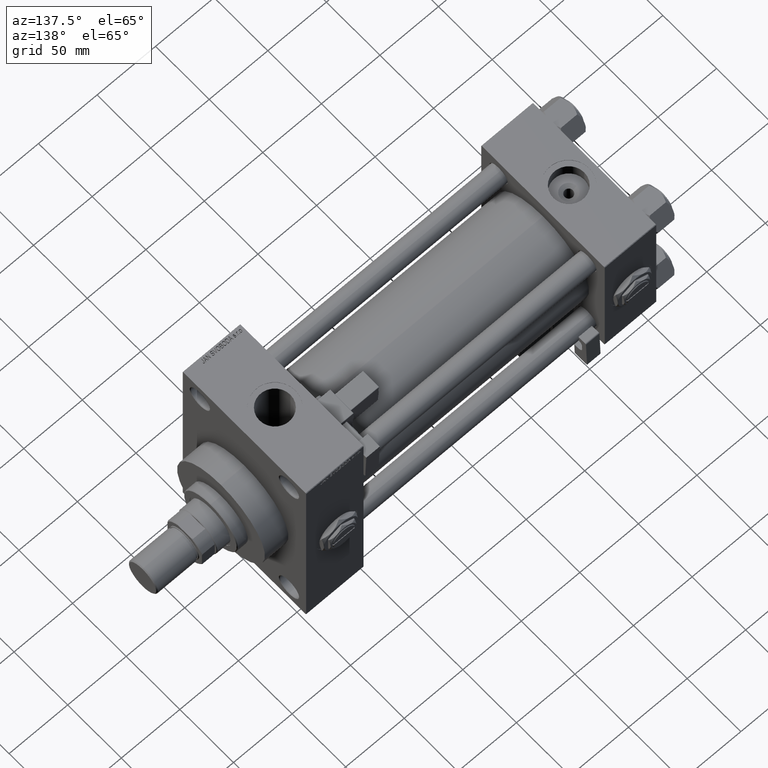
[diagram: clean part render]
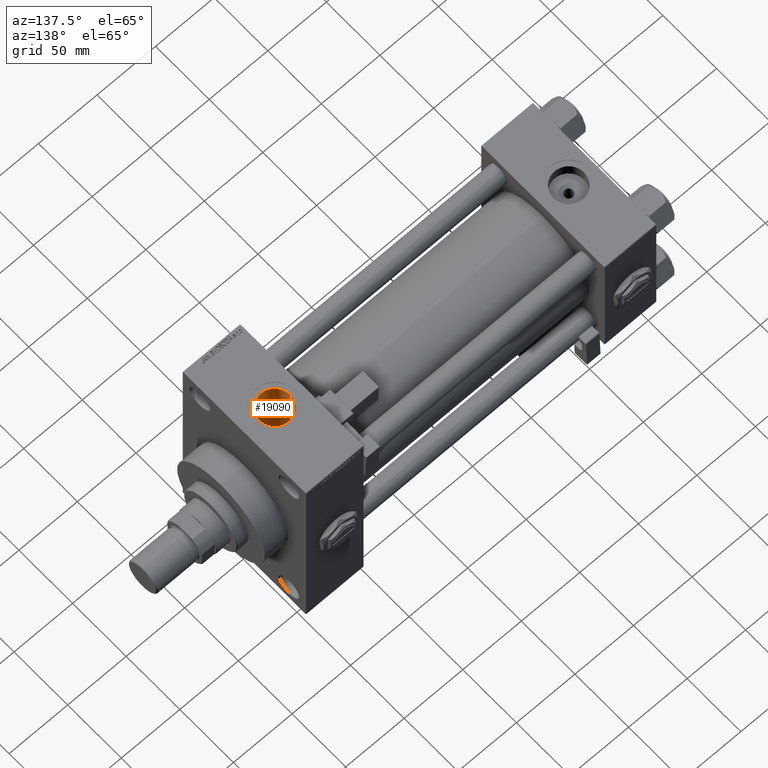
[diagram: same view with one face highlighted and labeled with its STEP entity id]
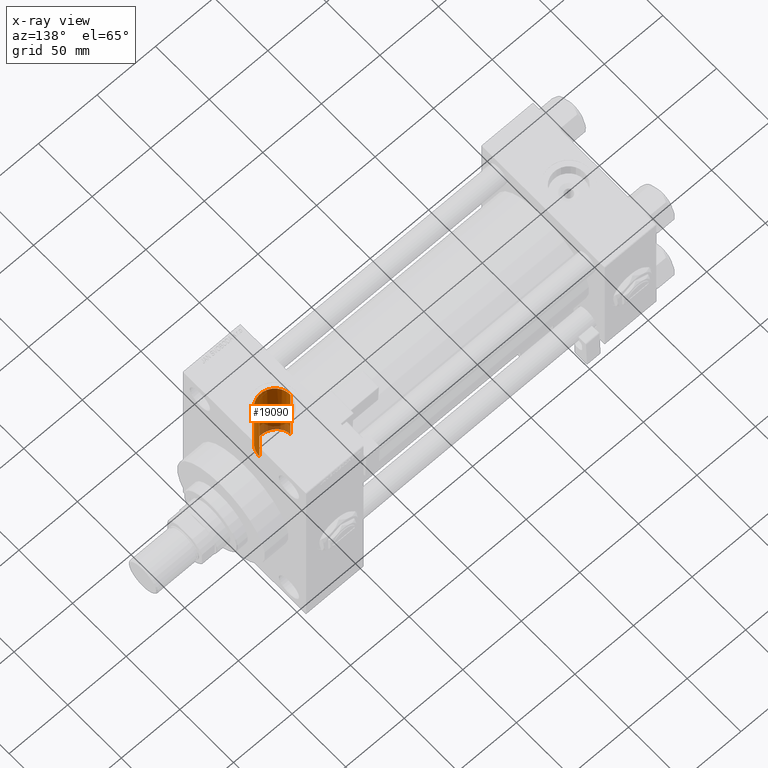
[diagram: x-ray of the same camera — body ghosted, the highlighted face saturated]
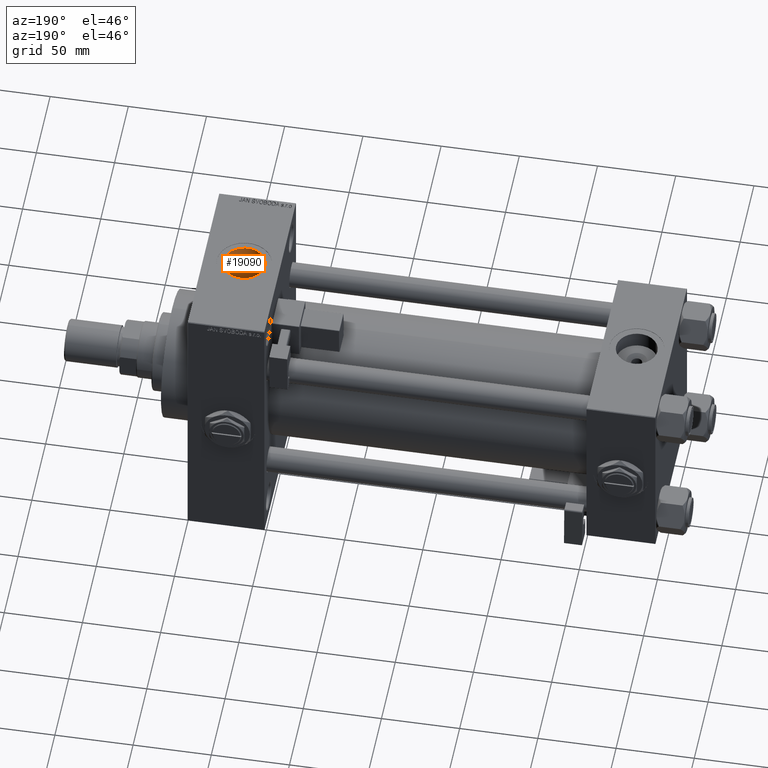
[diagram: same view with one face highlighted and labeled with its STEP entity id]
A machine part, auxiliary view. The second image highlights one B-rep face of the part: STEP entity #19090.
The next image is the same camera in x-ray: the body ghosted, the highlighted face saturated — about 12% of this face is hidden behind the body in this view.
A second angle (auxiliary view) of the same face is appended — the face is thin or edge-on in the first view.
In plain terms, the highlighted cylindrical surface (edge-blend (fillet) strip) has radius 13.22 mm, axis along (0, 0, -1).
Its self-contained STEP definition (entity closure, byte-faithful):
#2249 = DIRECTION ( 'NONE',  ( 0.000000000000000000, 0.000000000000000000, -1.000000000000000000 ) ) ;
#3088 = CARTESIAN_POINT ( 'NONE',  ( 260.0082494278152012, -2.458584717718182322, 30.40173955536770478 ) ) ;
#3116 = VECTOR ( 'NONE', #29757, 1000.000000000000000 ) ;
#3138 = CARTESIAN_POINT ( 'NONE',  ( 275.7400000000000091, -12.93293470176046611, 33.59671412504502541 ) ) ;
#3656 = CARTESIAN_POINT ( 'NONE',  ( 282.7829955645538007, -8.922873027715082728, 34.88174282732674669 ) ) ;
#3984 = VECTOR ( 'NONE', #2249, 1000.000000000000000 ) ;
#7051 = CARTESIAN_POINT ( 'NONE',  ( 272.3058823230128382, -13.21107762266987429, 27.49031640659328701 ) ) ;
#7096 = CARTESIAN_POINT ( 'NONE',  ( 276.1130436000876784, -12.85390086390294151, 33.62713791769438387 ) ) ;
#7129 = CARTESIAN_POINT ( 'NONE',  ( 286.2200000000000273, 4.408731805096607676E-15, 36.00000000000000000 ) ) ;
#7365 = CARTESIAN_POINT ( 'NONE',  ( 282.2683236211794338, -9.456123306897660896, 34.73961675537525196 ) ) ;
#7572 = CARTESIAN_POINT ( 'NONE',  ( 260.3336605936851811, -3.913778405700221175, 30.26347032903657208 ) ) ;
#7620 = CARTESIAN_POINT ( 'NONE',  ( 280.5356348427428657, -10.86845247487192090, 34.32099817610180281 ) ) ;
#7640 = B_SPLINE_CURVE_WITH_KNOTS ( 'NONE', 3,
 ( #13752, #29937, #9776, #20085, #19816, #43726, #28300, #35489, #23272, #24051, #11865, #52201, #51934, #3656, #7365, #51422, #40538, #7620, #31769, #19570, #44507, #19305, #48483, #28046, #7096, #3138 ),
 .UNSPECIFIED., .F., .F.,
 ( 4, 2, 2, 2, 2, 2, 2, 2, 2, 2, 2, 2, 4 ),
 ( 0.01810032772820881902, 0.02036086973656279359, 0.02149114074073979821, 0.02262141174491679937, 0.02488195375327080516, 0.02601222475744784796, 0.02714249576162488728, 0.02940303776997887225, 0.03053330877415585953, 0.03166357977833285375, 0.03392412178668670342, 0.03505439279086354498, 0.03618466379504039349 ),
 .UNSPECIFIED. ) ;
#7801 = CARTESIAN_POINT ( 'NONE',  ( 275.7400000000000091, -12.93293470176046611, 33.59671412504502541 ) ) ;
#7878 = EDGE_CURVE ( 'NONE', #31134, #37495, #24275, .T. ) ;
#9767 = VERTEX_POINT ( 'NONE', #7129 ) ;
#9776 = CARTESIAN_POINT ( 'NONE',  ( 286.1544019816762443, -1.515576091947747228, 35.97576316411753794 ) ) ;
#10331 = ORIENTED_EDGE ( 'NONE', *, *, #48759, .T. ) ;
#10448 = LINE ( 'NONE', #43613, #3984 ) ;
#11563 = CARTESIAN_POINT ( 'NONE',  ( 261.2888049357343334, -6.152518877594228108, 29.87635194004261052 ) ) ;
#11865 = CARTESIAN_POINT ( 'NONE',  ( 284.1369082302657034, -7.132913908064977271, 35.28770313236167055 ) ) ;
#12072 = CARTESIAN_POINT ( 'NONE',  ( 270.8194127222319594, -13.04835861710613010, 27.56801161413730483 ) ) ;
#12146 = VECTOR ( 'NONE', #31407, 1000.000000000000000 ) ;
#12324 = DIRECTION ( 'NONE',  ( -1.000000000000000000, 0.000000000000000000, 0.000000000000000000 ) ) ;
#12375 = EDGE_CURVE ( 'NONE', #31134, #30097, #33746, .T. ) ;
#13134 = CARTESIAN_POINT ( 'NONE',  ( 259.7800000000000296, 3.735152335240900306E-15, 30.50000000000000000 ) ) ;
#13275 = EDGE_CURVE ( 'NONE', #40858, #9767, #10448, .T. ) ;
#13569 = CARTESIAN_POINT ( 'NONE',  ( 275.7400000000000091, -12.93293470176046611, 112.7999999999999829 ) ) ;
#13752 = CARTESIAN_POINT ( 'NONE',  ( 286.2200000000000273, 4.408731805096607676E-15, 36.00000000000000000 ) ) ;
#14296 = ORIENTED_EDGE ( 'NONE', *, *, #37076, .F. ) ;
#15522 = CARTESIAN_POINT ( 'NONE',  ( 265.4103075940778922, -10.86814745508432445, 28.50545567885847476 ) ) ;
#15796 = CARTESIAN_POINT ( 'NONE',  ( 271.8037034507516410, -13.17510903343226936, 27.50766127672412509 ) ) ;
#16054 = CARTESIAN_POINT ( 'NONE',  ( 259.8904211679684977, -1.722922135315093639, 30.45229114395321446 ) ) ;
#19090 = ADVANCED_FACE ( 'NONE', ( #32233 ), #48418, .F. ) ;
#19261 = CARTESIAN_POINT ( 'NONE',  ( 259.9249887712034592, -1.968324950537283069, 30.43741289426055729 ) ) ;
#19305 = CARTESIAN_POINT ( 'NONE',  ( 277.5622627804117428, -12.41346128962092443, 33.79242230791056301 ) ) ;
#19570 = CARTESIAN_POINT ( 'NONE',  ( 279.2689392453521009, -11.66300537238691959, 34.06086853725206964 ) ) ;
#19770 = CARTESIAN_POINT ( 'NONE',  ( 275.7400000000000091, -12.93293470176046611, 27.62225914004862659 ) ) ;
#19816 = CARTESIAN_POINT ( 'NONE',  ( 285.8814408249626240, -2.996635129533371522, 35.87694312671834496 ) ) ;
#19944 = CARTESIAN_POINT ( 'NONE',  ( 275.7400000000000091, -12.93293470176046611, 27.62225914004862659 ) ) ;
#20085 = CARTESIAN_POINT ( 'NONE',  ( 285.9615557504130265, -2.628343228240515916, 35.90584824798535379 ) ) ;
#20809 = DIRECTION ( 'NONE',  ( 0.000000000000000000, 0.000000000000000000, -1.000000000000000000 ) ) ;
#23223 = CARTESIAN_POINT ( 'NONE',  ( 267.5318111534776904, -12.04594987798916961, 28.02143598411493031 ) ) ;
#23272 = CARTESIAN_POINT ( 'NONE',  ( 284.8836492013383577, -5.839896060611117434, 35.52932100949514194 ) ) ;
#24051 = CARTESIAN_POINT ( 'NONE',  ( 284.3340033522583212, -6.815280192024304462, 35.35054759480855324 ) ) ;
#24275 = B_SPLINE_CURVE_WITH_KNOTS ( 'NONE', 3,
 ( #19770, #43411, #31461, #7051, #15796, #12072, #31988, #40493, #48170, #51890, #23223, #40215, #15522, #27997, #27734, #36234, #48698, #39436, #11563, #43934, #7572, #27207, #3088, #19261, #16054, #48435, #33831, #13134 ),
 .UNSPECIFIED., .F., .F.,
 ( 4, 2, 2, 2, 2, 2, 2, 2, 2, 2, 2, 2, 2, 4 ),
 ( 0.01817501853417220065, 0.02113533814074462780, 0.02261549794403084485, 0.02409565774731705842, 0.02557581755060327200, 0.02705597735388948905, 0.03001629696046177048, 0.03297661656703405886, 0.03445677637032025509, 0.03593693617360644438, 0.03889725578017876051, 0.03963733568182185862, 0.04037741558346495674, 0.04185757538675115297 ),
 .UNSPECIFIED. ) ;
#26546 = VERTEX_POINT ( 'NONE', #28803 ) ;
#27207 = CARTESIAN_POINT ( 'NONE',  ( 260.0571384771800467, -2.704130925345926695, 30.38086169036233741 ) ) ;
#27734 = CARTESIAN_POINT ( 'NONE',  ( 263.2203172874390589, -8.947551960444535268, 29.16865783815237023 ) ) ;
#27781 = EDGE_CURVE ( 'NONE', #26546, #37495, #44407, .T. ) ;
#27997 = CARTESIAN_POINT ( 'NONE',  ( 263.8972371638813001, -9.636377362439805694, 28.94508358760566225 ) ) ;
#28046 = CARTESIAN_POINT ( 'NONE',  ( 276.4827252521804439, -12.75862568112612649, 33.66350131574143489 ) ) ;
#28300 = CARTESIAN_POINT ( 'NONE',  ( 285.5762609626180506, -4.092528755394253537, 35.76841822259746806 ) ) ;
#28803 = CARTESIAN_POINT ( 'NONE',  ( 259.7800000000000296, -1.086087741481131350E-14, 89.79999999999998295 ) ) ;
#28943 = DIRECTION ( 'NONE',  ( -0.000000000000000000, -0.000000000000000000, -1.000000000000000000 ) ) ;
#29034 = CARTESIAN_POINT ( 'NONE',  ( 273.0000000000000000, -1.086087741481131350E-14, 112.7999999999999829 ) ) ;
#29358 = ORIENTED_EDGE ( 'NONE', *, *, #27781, .F. ) ;
#29757 = DIRECTION ( 'NONE',  ( -0.000000000000000000, -0.000000000000000000, 1.000000000000000000 ) ) ;
#29937 = CARTESIAN_POINT ( 'NONE',  ( 286.2200000000000841, -0.7632647160769693295, 36.00000000000000711 ) ) ;
#30097 = VERTEX_POINT ( 'NONE', #7801 ) ;
#31134 = VERTEX_POINT ( 'NONE', #19944 ) ;
#31407 = DIRECTION ( 'NONE',  ( 0.000000000000000000, 0.000000000000000000, -1.000000000000000000 ) ) ;
#31461 = CARTESIAN_POINT ( 'NONE',  ( 273.7935798839905601, -13.23338642126741860, 27.47958799131999541 ) ) ;
#31769 = CARTESIAN_POINT ( 'NONE',  ( 280.2234778375481028, -11.07831175427974379, 34.25365854375354502 ) ) ;
#31988 = CARTESIAN_POINT ( 'NONE',  ( 270.3349265898028762, -12.95789683450917096, 27.61085799903364091 ) ) ;
#32233 = FACE_OUTER_BOUND ( 'NONE', #52448, .T. ) ;
#32676 = CARTESIAN_POINT ( 'NONE',  ( 273.0000000000000000, -1.086087741481131350E-14, 89.79999999999998295 ) ) ;
#33487 = CIRCLE ( 'NONE', #47868, 13.22000000000000952 ) ;
#33746 = LINE ( 'NONE', #13569, #3116 ) ;
#33831 = CARTESIAN_POINT ( 'NONE',  ( 259.7800000000002001, -0.4934884814115254037, 30.50000000000001421 ) ) ;
#35025 = ORIENTED_EDGE ( 'NONE', *, *, #12375, .F. ) ;
#35489 = CARTESIAN_POINT ( 'NONE',  ( 285.1948937127547765, -5.159834589306234065, 35.63551938799943741 ) ) ;
#36234 = CARTESIAN_POINT ( 'NONE',  ( 262.3230183722455422, -7.810479071823779762, 29.48561069758635256 ) ) ;
#37000 = CARTESIAN_POINT ( 'NONE',  ( 286.2200000000000273, -9.241894346338516295E-15, 89.79999999999998295 ) ) ;
#37076 = EDGE_CURVE ( 'NONE', #40858, #26546, #33487, .T. ) ;
#37495 = VERTEX_POINT ( 'NONE', #50818 ) ;
#39436 = CARTESIAN_POINT ( 'NONE',  ( 261.5247582497706276, -6.582345398711106021, 29.78430981770568309 ) ) ;
#40215 = CARTESIAN_POINT ( 'NONE',  ( 266.2234386244903135, -11.39284893347525340, 28.29622104590160703 ) ) ;
#40493 = CARTESIAN_POINT ( 'NONE',  ( 269.3806226936400208, -12.72437874985376283, 27.71924882183592942 ) ) ;
#40538 = CARTESIAN_POINT ( 'NONE',  ( 281.1396695021039136, -10.42376285600498598, 34.45866136291866155 ) ) ;
#40858 = VERTEX_POINT ( 'NONE', #37000 ) ;
#43411 = CARTESIAN_POINT ( 'NONE',  ( 274.7728848785529294, -13.13782983916527591, 27.52632580529387241 ) ) ;
#43613 = CARTESIAN_POINT ( 'NONE',  ( 286.2200000000000273, -9.241894346338513140E-15, 112.7999999999999829 ) ) ;
#43726 = CARTESIAN_POINT ( 'NONE',  ( 285.6891278366015854, -3.727918262643104441, 35.80834393886973999 ) ) ;
#43934 = CARTESIAN_POINT ( 'NONE',  ( 260.6573864625835881, -4.834977203227574627, 30.12760479331263141 ) ) ;
#44348 = DIRECTION ( 'NONE',  ( 1.000000000000000000, 0.000000000000000000, 0.000000000000000000 ) ) ;
#44407 = LINE ( 'NONE', #52099, #12146 ) ;
#44507 = CARTESIAN_POINT ( 'NONE',  ( 278.6039743856110817, -11.99680468088063101, 33.94354112271071955 ) ) ;
#44930 = AXIS2_PLACEMENT_3D ( 'NONE', #29034, #20809, #12324 ) ;
#46592 = ORIENTED_EDGE ( 'NONE', *, *, #7878, .T. ) ;
#47868 = AXIS2_PLACEMENT_3D ( 'NONE', #32676, #28943, #44348 ) ;
#48170 = CARTESIAN_POINT ( 'NONE',  ( 268.9108056136109894, -12.58132053668445138, 27.78479549450236874 ) ) ;
#48418 = CYLINDRICAL_SURFACE ( 'NONE', #44930, 13.22000000000000952 ) ;
#48435 = CARTESIAN_POINT ( 'NONE',  ( 259.8075453442668277, -0.9859064391995592258, 30.48803002647010274 ) ) ;
#48483 = CARTESIAN_POINT ( 'NONE',  ( 277.2076088460675578, -12.53825874082046887, 33.74619856893892944 ) ) ;
#48698 = CARTESIAN_POINT ( 'NONE',  ( 262.0434615026330789, -7.413683856886486900, 29.58833678893008212 ) ) ;
#48759 = EDGE_CURVE ( 'NONE', #9767, #30097, #7640, .T. ) ;
#50818 = CARTESIAN_POINT ( 'NONE',  ( 259.7800000000000296, 3.735152335240900306E-15, 30.50000000000000000 ) ) ;
#51422 = CARTESIAN_POINT ( 'NONE',  ( 281.4301524439943023, -10.19013505585469659, 34.52862519156883536 ) ) ;
#51834 = ORIENTED_EDGE ( 'NONE', *, *, #13275, .T. ) ;
#51890 = CARTESIAN_POINT ( 'NONE',  ( 267.9856869291995167, -12.24205054737450382, 27.93593895886881029 ) ) ;
#51934 = CARTESIAN_POINT ( 'NONE',  ( 283.4891427515922260, -8.055144359843696478, 35.08850325643999213 ) ) ;
#52099 = CARTESIAN_POINT ( 'NONE',  ( 259.7800000000000296, -1.086087741481131350E-14, 112.7999999999999829 ) ) ;
#52201 = CARTESIAN_POINT ( 'NONE',  ( 283.7144084780976527, -7.753104972441691167, 35.15664683191295836 ) ) ;
#52448 = EDGE_LOOP ( 'NONE', ( #14296, #51834, #10331, #35025, #46592, #29358 ) ) ;